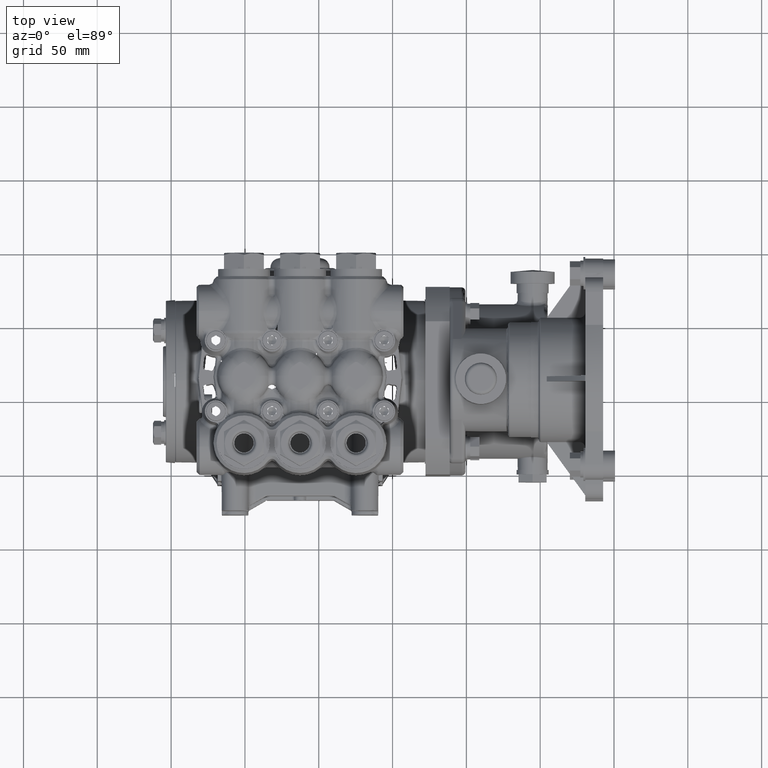
[diagram: clean part render]
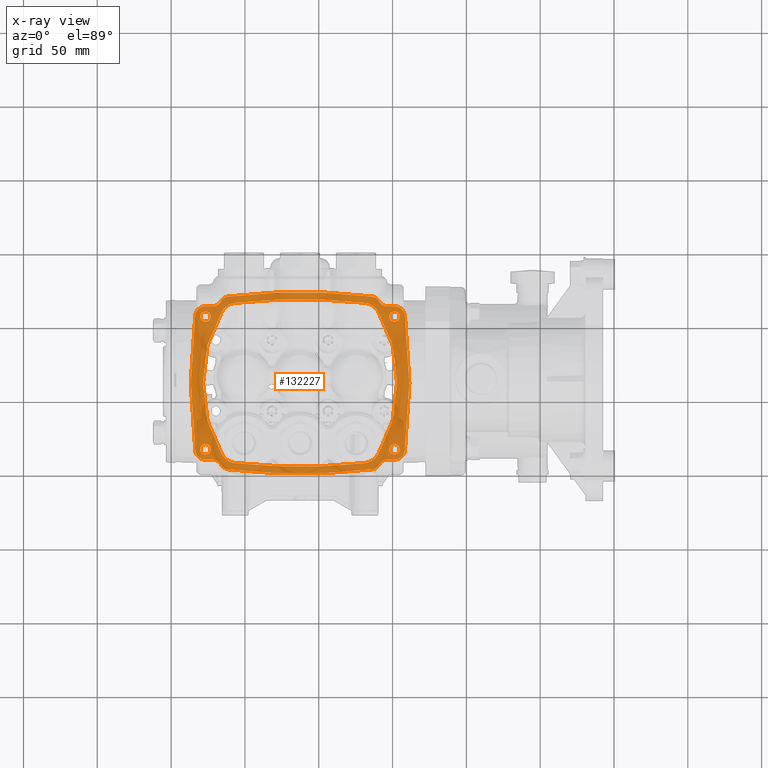
[diagram: x-ray — body ghosted, one internal face saturated and labeled with its STEP entity id]
A machine part, top view, then the same camera in x-ray: the body is ghosted and one INTERNAL B-rep face — a face not visible from any outside direction — is saturated and labeled: STEP entity #132227.
In plain terms, the highlighted planar face has unit normal (0, 0, 1).
Its self-contained STEP definition (entity closure, byte-faithful):
#609 = DIRECTION ( 'NONE',  ( 1.000000000000000000, 0.000000000000000000, 0.000000000000000000 ) ) ;
#864 = CARTESIAN_POINT ( 'NONE',  ( 3.413867403216003016, -1.797611715120703169, -5.317289967586638966 ) ) ;
#1188 = ORIENTED_EDGE ( 'NONE', *, *, #77171, .T. ) ;
#2255 = CARTESIAN_POINT ( 'NONE',  ( 3.320735979854865683, -1.727830149302324703, -5.317289967586638966 ) ) ;
#2276 = CARTESIAN_POINT ( 'NONE',  ( 2.611671022762315442, 2.277757794488521892, -5.317289967586638966 ) ) ;
#2617 = CARTESIAN_POINT ( 'NONE',  ( 3.303574192817006594, 2.679664629551545385, -5.317289967586638966 ) ) ;
#2644 = CARTESIAN_POINT ( 'NONE',  ( 3.024452681768649676, -1.283787736034321503, -5.317289967586638966 ) ) ;
#2761 = EDGE_CURVE ( 'NONE', #20113, #86697, #138893, .T. ) ;
#2903 = EDGE_CURVE ( 'NONE', #82372, #104227, #89151, .T. ) ;
#3239 = CARTESIAN_POINT ( 'NONE',  ( 2.886657406178098295, 2.259519350579851427, -5.317289967586638966 ) ) ;
#3556 = DIRECTION ( 'NONE',  ( 0.000000000000000000, 0.000000000000000000, 1.000000000000000000 ) ) ;
#3898 = CARTESIAN_POINT ( 'NONE',  ( 7.880154257161686715, -0.4895993976771134126, -5.317289967586638966 ) ) ;
#4287 = CARTESIAN_POINT ( 'NONE',  ( 7.432543783667222570, -1.780926782060455738, -5.317289967586638966 ) ) ;
#4313 = EDGE_LOOP ( 'NONE', ( #125128, #1188 ) ) ;
#4745 = CARTESIAN_POINT ( 'NONE',  ( 3.298571622389044666, 2.671321343309664087, -5.317289967586638078 ) ) ;
#4897 = DIRECTION ( 'NONE',  ( 0.000000000000000000, 0.000000000000000000, 1.000000000000000000 ) ) ;
#4924 = AXIS2_PLACEMENT_3D ( 'NONE', #92010, #60071, #6209 ) ;
#5015 = DIRECTION ( 'NONE',  ( 0.000000000000000000, 0.000000000000000000, 1.000000000000000000 ) ) ;
#5058 = CARTESIAN_POINT ( 'NONE',  ( 7.518590057979952945, 2.662679475742813384, -5.317289967586638966 ) ) ;
#5204 = EDGE_CURVE ( 'NONE', #130265, #27602, #35133, .T. ) ;
#5214 = ORIENTED_EDGE ( 'NONE', *, *, #16786, .T. ) ;
#5229 = VERTEX_POINT ( 'NONE', #21593 ) ;
#5709 = VERTEX_POINT ( 'NONE', #83568 ) ;
#5761 = CARTESIAN_POINT ( 'NONE',  ( 7.511800168877019068, 2.675787843240239994, -5.317289967586638966 ) ) ;
#6209 = DIRECTION ( 'NONE',  ( 1.000000000000000000, 0.000000000000000000, 0.000000000000000000 ) ) ;
#6291 = ORIENTED_EDGE ( 'NONE', *, *, #25752, .F. ) ;
#6449 = ORIENTED_EDGE ( 'NONE', *, *, #98946, .F. ) ;
#6495 = EDGE_CURVE ( 'NONE', #65963, #5709, #64394, .T. ) ;
#6527 = EDGE_CURVE ( 'NONE', #106988, #134877, #88781, .T. ) ;
#7456 = ORIENTED_EDGE ( 'NONE', *, *, #67281, .T. ) ;
#7612 = VERTEX_POINT ( 'NONE', #131126 ) ;
#7795 = ORIENTED_EDGE ( 'NONE', *, *, #2903, .T. ) ;
#7869 = EDGE_CURVE ( 'NONE', #70954, #56093, #54397, .T. ) ;
#7923 = DIRECTION ( 'NONE',  ( 0.000000000000000000, 0.000000000000000000, 1.000000000000000000 ) ) ;
#8208 = ORIENTED_EDGE ( 'NONE', *, *, #20213, .T. ) ;
#8405 = CIRCLE ( 'NONE', #112600, 0.2362204724409451007 ) ;
#8470 = DIRECTION ( 'NONE',  ( 0.3947480969913202409, -0.9187893882287339054, -0.000000000000000000 ) ) ;
#8599 = EDGE_CURVE ( 'NONE', #26677, #55913, #33553, .T. ) ;
#8764 = CARTESIAN_POINT ( 'NONE',  ( 8.319728272319830253, 0.4878658072727648509, -5.317289967586638966 ) ) ;
#8810 = ORIENTED_EDGE ( 'NONE', *, *, #125415, .F. ) ;
#8829 = AXIS2_PLACEMENT_3D ( 'NONE', #72306, #136787, #105590 ) ;
#8857 = AXIS2_PLACEMENT_3D ( 'NONE', #129109, #43352, #75287 ) ;
#8888 = CIRCLE ( 'NONE', #47432, 0.1377952755905512972 ) ;
#8974 = VECTOR ( 'NONE', #105272, 39.37007874015748854 ) ;
#9060 = EDGE_CURVE ( 'NONE', #105910, #67926, #56403, .T. ) ;
#9602 = ORIENTED_EDGE ( 'NONE', *, *, #10433, .F. ) ;
#10209 = VERTEX_POINT ( 'NONE', #84553 ) ;
#10397 = ORIENTED_EDGE ( 'NONE', *, *, #14063, .T. ) ;
#10433 = EDGE_CURVE ( 'NONE', #10209, #93838, #67634, .T. ) ;
#10568 = DIRECTION ( 'NONE',  ( 1.000000000000000000, 0.000000000000000000, 0.000000000000000000 ) ) ;
#10599 = DIRECTION ( 'NONE',  ( -1.000000000000000000, 0.000000000000000000, 0.000000000000000000 ) ) ;
#10650 = CARTESIAN_POINT ( 'NONE',  ( 7.926027484918256150, -1.559378287215424264, -5.317289967586638966 ) ) ;
#10690 = AXIS2_PLACEMENT_3D ( 'NONE', #77175, #54488, #140241 ) ;
#10780 = AXIS2_PLACEMENT_3D ( 'NONE', #64938, #35069, #32322 ) ;
#11029 = EDGE_CURVE ( 'NONE', #88131, #62793, #97109, .T. ) ;
#11075 = AXIS2_PLACEMENT_3D ( 'NONE', #60013, #91260, #91954 ) ;
#11125 = CARTESIAN_POINT ( 'NONE',  ( 5.406342445548184550, -12.84874836595558101, -5.317289967586638966 ) ) ;
#12009 = CARTESIAN_POINT ( 'NONE',  ( 8.122445382067809305, 0.4878658072727648509, -5.317289967586638966 ) ) ;
#12043 = AXIS2_PLACEMENT_3D ( 'NONE', #11125, #64310, #108220 ) ;
#12689 = CARTESIAN_POINT ( 'NONE',  ( 3.084344387589747161, 2.771330374201901314, -5.317289967586638966 ) ) ;
#12705 = DIRECTION ( 'NONE',  ( 0.000000000000000000, 0.000000000000000000, 1.000000000000000000 ) ) ;
#13027 = VERTEX_POINT ( 'NONE', #138282 ) ;
#13245 = CARTESIAN_POINT ( 'NONE',  ( 3.479894905609290046, 2.790850897737196412, -5.317289967586638966 ) ) ;
#13249 = AXIS2_PLACEMENT_3D ( 'NONE', #97131, #85827, #10599 ) ;
#13276 = VECTOR ( 'NONE', #120032, 39.37007874015748854 ) ;
#13361 = CIRCLE ( 'NONE', #17979, 0.1377952755905512972 ) ;
#13589 = CARTESIAN_POINT ( 'NONE',  ( 3.460334305591270976, -1.812706597195267610, -5.317289967586638966 ) ) ;
#14063 = EDGE_CURVE ( 'NONE', #90517, #67926, #103508, .T. ) ;
#14292 = EDGE_CURVE ( 'NONE', #5229, #98233, #8405, .T. ) ;
#14650 = CARTESIAN_POINT ( 'NONE',  ( 3.340588699600012923, 2.725087387763449609, -5.317289967586638078 ) ) ;
#14793 = CARTESIAN_POINT ( 'NONE',  ( 3.128037939532309686, -0.4666435496617349910, -5.317289967586638966 ) ) ;
#15228 = ORIENTED_EDGE ( 'NONE', *, *, #17170, .T. ) ;
#15229 = CARTESIAN_POINT ( 'NONE',  ( 8.201013868334039003, 2.277757794488521892, -5.317289967586638966 ) ) ;
#15258 = CIRCLE ( 'NONE', #24375, 0.1377952755905512972 ) ;
#15496 = VERTEX_POINT ( 'NONE', #55489 ) ;
#15681 = VERTEX_POINT ( 'NONE', #16948 ) ;
#15772 = ORIENTED_EDGE ( 'NONE', *, *, #98253, .F. ) ;
#16224 = ORIENTED_EDGE ( 'NONE', *, *, #114630, .F. ) ;
#16612 = CIRCLE ( 'NONE', #100392, 0.2362204724409461831 ) ;
#16786 = EDGE_CURVE ( 'NONE', #125820, #73538, #117130, .T. ) ;
#16948 = CARTESIAN_POINT ( 'NONE',  ( 8.201013868334040779, -1.302026179942992412, -5.317289967586638966 ) ) ;
#17019 = DIRECTION ( 'NONE',  ( 1.000000000000000000, 0.000000000000000000, 0.000000000000000000 ) ) ;
#17170 = EDGE_CURVE ( 'NONE', #30438, #65963, #65148, .T. ) ;
#17802 = CARTESIAN_POINT ( 'NONE',  ( 7.440968046772995059, 2.750358123708577018, -5.317289967586638966 ) ) ;
#17901 = ORIENTED_EDGE ( 'NONE', *, *, #120611, .T. ) ;
#17979 = AXIS2_PLACEMENT_3D ( 'NONE', #22236, #46265, #78234 ) ;
#18443 = CARTESIAN_POINT ( 'NONE',  ( 7.788232209327704325, -1.283787736034321503, -5.317289967586638966 ) ) ;
#18624 = VERTEX_POINT ( 'NONE', #138701 ) ;
#19608 = VERTEX_POINT ( 'NONE', #71321 ) ;
#20065 = CIRCLE ( 'NONE', #11075, 0.1968503937007875793 ) ;
#20113 = VERTEX_POINT ( 'NONE', #100600 ) ;
#20213 = EDGE_CURVE ( 'NONE', #48112, #35187, #8888, .T. ) ;
#20762 = AXIS2_PLACEMENT_3D ( 'NONE', #24382, #46334, #68356 ) ;
#21234 = FACE_BOUND ( 'NONE', #33761, .T. ) ;
#21561 = ORIENTED_EDGE ( 'NONE', *, *, #9060, .F. ) ;
#21593 = CARTESIAN_POINT ( 'NONE',  ( 7.728340437024717069, -1.559378287215424264, -5.317289967586638966 ) ) ;
#21795 = VECTOR ( 'NONE', #36975, 39.37007874015748854 ) ;
#21987 = LINE ( 'NONE', #10650, #126529 ) ;
#22197 = CIRCLE ( 'NONE', #94593, 0.1968503937007875793 ) ;
#22236 = CARTESIAN_POINT ( 'NONE',  ( 2.886657406178098295, -1.283787736034321503, -5.317289967586638966 ) ) ;
#22598 = CARTESIAN_POINT ( 'NONE',  ( 7.926027484918256150, 2.535109901760953743, -5.317289967586638966 ) ) ;
#22787 = CARTESIAN_POINT ( 'NONE',  ( 7.488202924591164766, -1.732362880993868259, -5.317289967586638966 ) ) ;
#22859 = CARTESIAN_POINT ( 'NONE',  ( 3.404850880243078581, -1.793573122920251617, -5.317289967586638078 ) ) ;
#22938 = CARTESIAN_POINT ( 'NONE',  ( 8.201013868334039003, 2.277757794488521892, -5.317289967586638966 ) ) ;
#22970 = VERTEX_POINT ( 'NONE', #52911 ) ;
#23536 = CARTESIAN_POINT ( 'NONE',  ( 3.441382354990695447, -1.808028119427974145, -5.317289967586638078 ) ) ;
#23941 = ORIENTED_EDGE ( 'NONE', *, *, #126894, .T. ) ;
#24149 = EDGE_CURVE ( 'NONE', #5709, #13027, #127144, .T. ) ;
#24336 = AXIS2_PLACEMENT_3D ( 'NONE', #38424, #7923, #73139 ) ;
#24375 = AXIS2_PLACEMENT_3D ( 'NONE', #33918, #120376, #609 ) ;
#24382 = CARTESIAN_POINT ( 'NONE',  ( 3.734967970170996132, -1.181150655628262935, -5.317289967586638966 ) ) ;
#25552 = CARTESIAN_POINT ( 'NONE',  ( 7.384365518556138319, -1.803251160357355332, -5.317289967586638966 ) ) ;
#25709 = VERTEX_POINT ( 'NONE', #45196 ) ;
#25752 = EDGE_CURVE ( 'NONE', #56093, #123393, #78339, .T. ) ;
#26324 = CARTESIAN_POINT ( 'NONE',  ( 7.992229719815443723, 0.4649099592573843753, -5.317289967586638966 ) ) ;
#26677 = VERTEX_POINT ( 'NONE', #15229 ) ;
#27042 = CARTESIAN_POINT ( 'NONE',  ( 7.457851312834733903, 2.737734370948620377, -5.317289967586638966 ) ) ;
#27602 = VERTEX_POINT ( 'NONE', #28023 ) ;
#28023 = CARTESIAN_POINT ( 'NONE',  ( 2.748862130587546915, -1.283787736034321503, -5.317289967586638966 ) ) ;
#28213 = ORIENTED_EDGE ( 'NONE', *, *, #69366, .T. ) ;
#28498 = VECTOR ( 'NONE', #67920, 39.37007874015748143 ) ;
#28573 = EDGE_CURVE ( 'NONE', #48949, #122759, #69655, .T. ) ;
#29412 = CIRCLE ( 'NONE', #104111, 0.1377952755905512972 ) ;
#29750 = EDGE_CURVE ( 'NONE', #129349, #70954, #119638, .T. ) ;
#30125 = EDGE_CURVE ( 'NONE', #15496, #96666, #20065, .T. ) ;
#30155 = CARTESIAN_POINT ( 'NONE',  ( 2.493820663731554976, 0.4748383473380001218, -5.317289967586638966 ) ) ;
#30438 = VERTEX_POINT ( 'NONE', #130752 ) ;
#30677 = CARTESIAN_POINT ( 'NONE',  ( 3.294093668923157026, -1.686944775002687358, -5.317289967586638966 ) ) ;
#31073 = VERTEX_POINT ( 'NONE', #63177 ) ;
#31104 = DIRECTION ( 'NONE',  ( -1.000000000000000000, 0.000000000000000000, 0.000000000000000000 ) ) ;
#31166 = DIRECTION ( 'NONE',  ( 0.000000000000000000, 0.000000000000000000, 1.000000000000000000 ) ) ;
#31467 = CARTESIAN_POINT ( 'NONE',  ( 2.611671022762313665, -1.302026179942992412, -5.317289967586638966 ) ) ;
#31743 = DIRECTION ( 'NONE',  ( -1.000000000000000000, 0.000000000000000000, 0.000000000000000000 ) ) ;
#31851 = ORIENTED_EDGE ( 'NONE', *, *, #43431, .F. ) ;
#32161 = ORIENTED_EDGE ( 'NONE', *, *, #6495, .T. ) ;
#32322 = DIRECTION ( 'NONE',  ( 1.000000000000000000, 0.000000000000000000, 0.000000000000000000 ) ) ;
#33471 = CARTESIAN_POINT ( 'NONE',  ( 3.355243169957465188, -1.762299798471638201, -5.317289967586638078 ) ) ;
#33520 = VECTOR ( 'NONE', #45797, 39.37007874015748143 ) ;
#33553 = LINE ( 'NONE', #22938, #13276 ) ;
#33761 = EDGE_LOOP ( 'NONE', ( #7456, #8208 ) ) ;
#33918 = CARTESIAN_POINT ( 'NONE',  ( 2.886657406178098295, 2.259519350579851427, -5.317289967586638966 ) ) ;
#34445 = LINE ( 'NONE', #45766, #87156 ) ;
#35069 = DIRECTION ( 'NONE',  ( -0.000000000000000000, -0.000000000000000000, -1.000000000000000000 ) ) ;
#35133 = CIRCLE ( 'NONE', #136775, 0.1377952755905512972 ) ;
#35187 = VERTEX_POINT ( 'NONE', #112984 ) ;
#35241 = DIRECTION ( 'NONE',  ( 1.000000000000000000, 0.000000000000000000, 0.000000000000000000 ) ) ;
#35462 = CARTESIAN_POINT ( 'NONE',  ( 7.465871803454825262, -1.755149933841411158, -5.317289967586638966 ) ) ;
#35805 = VECTOR ( 'NONE', #8470, 39.37007874015748143 ) ;
#36128 = AXIS2_PLACEMENT_3D ( 'NONE', #3239, #37955, #101069 ) ;
#36975 = DIRECTION ( 'NONE',  ( 0.06617949646860503410, -0.9978077341087118191, 0.000000000000000000 ) ) ;
#37204 = VECTOR ( 'NONE', #109311, 39.37007874015747433 ) ;
#37805 = EDGE_CURVE ( 'NONE', #19608, #71099, #43611, .T. ) ;
#37955 = DIRECTION ( 'NONE',  ( 0.000000000000000000, 0.000000000000000000, 1.000000000000000000 ) ) ;
#38424 = CARTESIAN_POINT ( 'NONE',  ( 2.690239509028545140, 0.4878658072727648509, -5.317289967586638966 ) ) ;
#38597 = B_SPLINE_CURVE_WITH_KNOTS ( 'NONE', 3,
 ( #13245, #79223, #90558, #122391, #78500, #101151, #68562, #111772, #99759, #14650, #123096, #133723, #101879, #2617, #4745, #113202 ),
 .UNSPECIFIED., .F., .F.,
 ( 4, 2, 2, 2, 2, 2, 2, 4 ),
 ( 0.000000000000000000, 0.2310239325060011450, 0.3465358987590028139, 0.4620478650120045661, 0.5775598312650063182, 0.6930717975180078483, 0.8085837637710096004, 0.9240957300240113526 ),
 .UNSPECIFIED. ) ;
#38824 = EDGE_CURVE ( 'NONE', #134877, #105910, #50227, .T. ) ;
#39671 = ORIENTED_EDGE ( 'NONE', *, *, #138355, .T. ) ;
#39709 = DIRECTION ( 'NONE',  ( 1.000000000000000000, 0.000000000000000000, 0.000000000000000000 ) ) ;
#39893 = ORIENTED_EDGE ( 'NONE', *, *, #54465, .T. ) ;
#40147 = EDGE_LOOP ( 'NONE', ( #47445, #15772 ) ) ;
#40179 = DIRECTION ( 'NONE',  ( -0.000000000000000000, 0.000000000000000000, 1.000000000000000000 ) ) ;
#41032 = ORIENTED_EDGE ( 'NONE', *, *, #28573, .T. ) ;
#41572 = AXIS2_PLACEMENT_3D ( 'NONE', #58014, #101267, #47387 ) ;
#42109 = CIRCLE ( 'NONE', #60240, 0.4724409448818902013 ) ;
#42126 = CARTESIAN_POINT ( 'NONE',  ( 2.947173886731377479, -0.5443498679671133766, -5.317289967586638966 ) ) ;
#42529 = VECTOR ( 'NONE', #134741, 39.37007874015748854 ) ;
#42939 = CIRCLE ( 'NONE', #36128, 0.2755905511811004294 ) ;
#43093 = CARTESIAN_POINT ( 'NONE',  ( 3.479894905609290046, 2.790850897737196412, -5.317289967586638966 ) ) ;
#43160 = CARTESIAN_POINT ( 'NONE',  ( 7.926027484918256150, 2.259519350579851427, -5.317289967586638966 ) ) ;
#43207 = CARTESIAN_POINT ( 'NONE',  ( 7.926027484918256150, -1.283787736034321503, -5.317289967586638966 ) ) ;
#43221 = DIRECTION ( 'NONE',  ( 1.000000000000000000, 0.000000000000000000, -0.000000000000000000 ) ) ;
#43241 = DIRECTION ( 'NONE',  ( -0.000000000000000000, -0.000000000000000000, -1.000000000000000000 ) ) ;
#43352 = DIRECTION ( 'NONE',  ( 0.000000000000000000, 0.000000000000000000, 1.000000000000000000 ) ) ;
#43394 = DIRECTION ( 'NONE',  ( -1.000000000000000000, 0.000000000000000000, 0.000000000000000000 ) ) ;
#43431 = EDGE_CURVE ( 'NONE', #52410, #20113, #84531, .T. ) ;
#43611 = B_SPLINE_CURVE_WITH_KNOTS ( 'NONE', 3,
 ( #60321, #59633, #92266, #114879, #136171, #113507, #17802, #27042, #126227, #103572, #61046, #58947, #5761, #5058 ),
 .UNSPECIFIED., .F., .F.,
 ( 4, 2, 2, 2, 2, 2, 4 ),
 ( 0.000000000000000000, 0.2499999999999943101, 0.3749999999999914513, 0.4999999999999886202, 0.6249999999999856781, 0.7499999999999829026, 0.9245799895658276535 ),
 .UNSPECIFIED. ) ;
#43893 = DIRECTION ( 'NONE',  ( -0.000000000000000000, -0.000000000000000000, -1.000000000000000000 ) ) ;
#43907 = FACE_BOUND ( 'NONE', #40147, .T. ) ;
#43976 = AXIS2_PLACEMENT_3D ( 'NONE', #53017, #66444, #31743 ) ;
#44711 = CARTESIAN_POINT ( 'NONE',  ( 7.457857942326485023, -1.761997106776481470, -5.317289967586638966 ) ) ;
#44790 = CARTESIAN_POINT ( 'NONE',  ( 3.379169296105529519, -1.779482673536470605, -5.317289967586638078 ) ) ;
#44909 = ORIENTED_EDGE ( 'NONE', *, *, #30125, .T. ) ;
#45004 = EDGE_CURVE ( 'NONE', #18624, #15681, #86752, .T. ) ;
#45196 = CARTESIAN_POINT ( 'NONE',  ( 7.728340503506607284, 2.535109901760954632, -5.317289967586638966 ) ) ;
#45444 = DIRECTION ( 'NONE',  ( 0.000000000000000000, 0.000000000000000000, 1.000000000000000000 ) ) ;
#45490 = CARTESIAN_POINT ( 'NONE',  ( 3.303583005842269049, -1.703944459029928415, -5.317289967586638966 ) ) ;
#45766 = CARTESIAN_POINT ( 'NONE',  ( 2.886657406178098295, 2.535109901760953743, -5.317289967586638966 ) ) ;
#45797 = DIRECTION ( 'NONE',  ( -0.1166157079181237149, -0.9931771124360221359, -0.000000000000000000 ) ) ;
#45994 = DIRECTION ( 'NONE',  ( -0.000000000000000000, -0.000000000000000000, -1.000000000000000000 ) ) ;
#46265 = DIRECTION ( 'NONE',  ( 0.000000000000000000, 0.000000000000000000, 1.000000000000000000 ) ) ;
#46334 = DIRECTION ( 'NONE',  ( 0.000000000000000000, 0.000000000000000000, 1.000000000000000000 ) ) ;
#46848 = DIRECTION ( 'NONE',  ( -0.000000000000000000, 0.000000000000000000, 1.000000000000000000 ) ) ;
#47259 = EDGE_CURVE ( 'NONE', #7612, #22970, #34445, .T. ) ;
#47387 = DIRECTION ( 'NONE',  ( 1.000000000000000000, 0.000000000000000000, 0.000000000000000000 ) ) ;
#47432 = AXIS2_PLACEMENT_3D ( 'NONE', #133164, #45994, #47435 ) ;
#47435 = DIRECTION ( 'NONE',  ( -1.000000000000000000, 0.000000000000000000, 0.000000000000000000 ) ) ;
#47445 = ORIENTED_EDGE ( 'NONE', *, *, #5204, .F. ) ;
#47538 = CARTESIAN_POINT ( 'NONE',  ( 7.332789985487073281, -1.815119283191671373, -5.317289967586638966 ) ) ;
#47573 = DIRECTION ( 'NONE',  ( 1.000000000000000000, 0.000000000000000000, 0.000000000000000000 ) ) ;
#47713 = EDGE_CURVE ( 'NONE', #137677, #62745, #92064, .T. ) ;
#48112 = VERTEX_POINT ( 'NONE', #96255 ) ;
#48297 = LINE ( 'NONE', #91570, #42529 ) ;
#48316 = ORIENTED_EDGE ( 'NONE', *, *, #54937, .T. ) ;
#48594 = CARTESIAN_POINT ( 'NONE',  ( 2.932530633934667730, -0.4895993976771134126, -5.317289967586638966 ) ) ;
#48649 = CARTESIAN_POINT ( 'NONE',  ( 7.992229719815443723, 0.5108216552881414962, -5.317289967586638966 ) ) ;
#48938 = ORIENTED_EDGE ( 'NONE', *, *, #14292, .F. ) ;
#48949 = VERTEX_POINT ( 'NONE', #31467 ) ;
#49040 = ORIENTED_EDGE ( 'NONE', *, *, #11029, .T. ) ;
#49204 = CARTESIAN_POINT ( 'NONE',  ( 3.300894243448763365, 2.343377434106709511, -5.317289967586638966 ) ) ;
#49344 = EDGE_CURVE ( 'NONE', #19608, #120899, #120322, .T. ) ;
#49380 = CARTESIAN_POINT ( 'NONE',  ( 7.511790647647591079, 2.343377434106709511, -5.317289967586638966 ) ) ;
#50227 = CIRCLE ( 'NONE', #20762, 0.4724409448818902013 ) ;
#50757 = CARTESIAN_POINT ( 'NONE',  ( 2.932530633934668174, 1.465331012222643725, -5.317289967586638966 ) ) ;
#51560 = ORIENTED_EDGE ( 'NONE', *, *, #104179, .F. ) ;
#52410 = VERTEX_POINT ( 'NONE', #129774 ) ;
#52911 = CARTESIAN_POINT ( 'NONE',  ( 2.886657406178098295, 2.535109901760951967, -5.317289967586638966 ) ) ;
#53017 = CARTESIAN_POINT ( 'NONE',  ( 7.926027484918256150, -1.283787736034321503, -5.317289967586638966 ) ) ;
#53563 = ORIENTED_EDGE ( 'NONE', *, *, #47259, .T. ) ;
#54397 = LINE ( 'NONE', #98998, #33520 ) ;
#54465 = EDGE_CURVE ( 'NONE', #120899, #105722, #38597, .T. ) ;
#54488 = DIRECTION ( 'NONE',  ( -0.000000000000000000, -0.000000000000000000, -1.000000000000000000 ) ) ;
#54543 = CARTESIAN_POINT ( 'NONE',  ( 2.886657406178098295, -1.559378287215424264, -5.317289967586638966 ) ) ;
#54563 = FACE_BOUND ( 'NONE', #4313, .T. ) ;
#54657 = B_SPLINE_CURVE_WITH_KNOTS ( 'NONE', 3,
 ( #100700, #130495, #56755, #22787, #76700, #35462, #44711, #4287, #79465, #25552, #121228, #58154, #119871, #47538 ),
 .UNSPECIFIED., .F., .F.,
 ( 4, 2, 2, 2, 2, 2, 4 ),
 ( 0.07546029968613815475, 0.2500000000000090483, 0.3750000000000077716, 0.5000000000000066613, 0.7500000000000042188, 0.8750000000000019984, 1.000000000000000000 ),
 .UNSPECIFIED. ) ;
#54776 = CARTESIAN_POINT ( 'NONE',  ( 3.479894905609280720, -1.815119283191671373, -5.317289967586638966 ) ) ;
#54937 = EDGE_CURVE ( 'NONE', #62793, #15496, #79889, .T. ) ;
#55131 = CARTESIAN_POINT ( 'NONE',  ( 7.518590057979952945, 2.662679475742813384, -5.317289967586638966 ) ) ;
#55489 = CARTESIAN_POINT ( 'NONE',  ( 7.992229719815443723, 0.5108216552881416073, -5.317289967586638966 ) ) ;
#55899 = VERTEX_POINT ( 'NONE', #49380 ) ;
#55913 = VERTEX_POINT ( 'NONE', #115967 ) ;
#56093 = VERTEX_POINT ( 'NONE', #75003 ) ;
#56344 = ORIENTED_EDGE ( 'NONE', *, *, #108413, .F. ) ;
#56403 = CIRCLE ( 'NONE', #8857, 15.57086614173228156 ) ;
#56755 = CARTESIAN_POINT ( 'NONE',  ( 7.503835977104873045, -1.712406181328635313, -5.317289967586638966 ) ) ;
#57000 = LINE ( 'NONE', #108787, #57904 ) ;
#57904 = VECTOR ( 'NONE', #76941, 39.37007874015748143 ) ;
#58014 = CARTESIAN_POINT ( 'NONE',  ( 3.734967970170999685, 2.156882270173801519, -5.317289967586638966 ) ) ;
#58154 = CARTESIAN_POINT ( 'NONE',  ( 7.353890537358118706, -1.811813072354132581, -5.317289967586638966 ) ) ;
#58167 = CARTESIAN_POINT ( 'NONE',  ( 2.886657406178098295, 2.259519350579851427, -5.317289967586638966 ) ) ;
#58947 = CARTESIAN_POINT ( 'NONE',  ( 7.503842289308088276, 2.688123624891000318, -5.317289967586638966 ) ) ;
#59613 = DIRECTION ( 'NONE',  ( -1.000000000000000000, 0.000000000000000000, 0.000000000000000000 ) ) ;
#59633 = CARTESIAN_POINT ( 'NONE',  ( 7.354015171132379791, 2.788234784937690502, -5.317289967586638966 ) ) ;
#59760 = EDGE_LOOP ( 'NONE', ( #9602, #77913 ) ) ;
#59928 = CARTESIAN_POINT ( 'NONE',  ( 7.077716920925354316, 2.156882270173801519, -5.317289967586638966 ) ) ;
#60013 = CARTESIAN_POINT ( 'NONE',  ( 7.796722414217802211, 0.4878658072727630746, -5.317289967586638966 ) ) ;
#60071 = DIRECTION ( 'NONE',  ( 0.000000000000000000, 0.000000000000000000, 1.000000000000000000 ) ) ;
#60240 = AXIS2_PLACEMENT_3D ( 'NONE', #59928, #89915, #93277 ) ;
#60321 = CARTESIAN_POINT ( 'NONE',  ( 7.332789985487065287, 2.790850897737196412, -5.317289967586638966 ) ) ;
#60525 = ORIENTED_EDGE ( 'NONE', *, *, #24149, .T. ) ;
#60810 = CARTESIAN_POINT ( 'NONE',  ( 3.294093668923157026, -1.686944775002687358, -5.317289967586638966 ) ) ;
#61046 = CARTESIAN_POINT ( 'NONE',  ( 7.488264395418887887, 2.708020378946751627, -5.317289967586638966 ) ) ;
#61262 = EDGE_CURVE ( 'NONE', #25709, #31073, #121730, .T. ) ;
#62011 = LINE ( 'NONE', #48594, #8974 ) ;
#62039 = VERTEX_POINT ( 'NONE', #76104 ) ;
#62745 = VERTEX_POINT ( 'NONE', #135898 ) ;
#62793 = VERTEX_POINT ( 'NONE', #125943 ) ;
#63177 = CARTESIAN_POINT ( 'NONE',  ( 7.926027484918256150, 2.535109901760951967, -5.317289967586638966 ) ) ;
#63302 = EDGE_CURVE ( 'NONE', #122759, #30438, #99138, .T. ) ;
#64310 = DIRECTION ( 'NONE',  ( 0.000000000000000000, 0.000000000000000000, 1.000000000000000000 ) ) ;
#64394 = B_SPLINE_CURVE_WITH_KNOTS ( 'NONE', 3,
 ( #30677, #73952, #45490, #76072, #2255, #129880, #67480, #33471, #119950, #44790, #120620, #22859, #864, #23536, #13589, #54776 ),
 .UNSPECIFIED., .F., .F.,
 ( 4, 2, 2, 2, 2, 2, 2, 4 ),
 ( 0.07585387448540915900, 0.1913721401747324191, 0.3068904058640556376, 0.4224086715533788561, 0.5379269372427021301, 0.6534452029320253486, 0.7689634686213485670, 1.000000000000000000 ),
 .UNSPECIFIED. ) ;
#64579 = EDGE_CURVE ( 'NONE', #55913, #18624, #22197, .T. ) ;
#64938 = CARTESIAN_POINT ( 'NONE',  ( 3.084344454071636932, -1.795598759656369392, -5.317289967586638966 ) ) ;
#65148 = CIRCLE ( 'NONE', #10780, 0.2362204724409445455 ) ;
#65863 = LINE ( 'NONE', #73703, #35805 ) ;
#65963 = VERTEX_POINT ( 'NONE', #60810 ) ;
#66444 = DIRECTION ( 'NONE',  ( -0.000000000000000000, -0.000000000000000000, -1.000000000000000000 ) ) ;
#66680 = CARTESIAN_POINT ( 'NONE',  ( 3.300894243448758925, -1.367645819561170040, -5.317289967586638966 ) ) ;
#67281 = EDGE_CURVE ( 'NONE', #35187, #48112, #29412, .T. ) ;
#67426 = VERTEX_POINT ( 'NONE', #77191 ) ;
#67480 = CARTESIAN_POINT ( 'NONE',  ( 3.340581867817319139, -1.749348262756680095, -5.317289967586638966 ) ) ;
#67631 = DIRECTION ( 'NONE',  ( 1.000000000000000000, 0.000000000000000000, 0.000000000000000000 ) ) ;
#67634 = CIRCLE ( 'NONE', #76786, 0.1377952755905512972 ) ;
#67920 = DIRECTION ( 'NONE',  ( 1.000000000000000000, -4.145717599848920794E-15, -0.000000000000000000 ) ) ;
#67926 = VERTEX_POINT ( 'NONE', #102463 ) ;
#68009 = CARTESIAN_POINT ( 'NONE',  ( 3.128037939532309686, 1.442375164207264859, -5.317289967586638966 ) ) ;
#68356 = DIRECTION ( 'NONE',  ( 1.000000000000000000, 0.000000000000000000, 0.000000000000000000 ) ) ;
#68562 = CARTESIAN_POINT ( 'NONE',  ( 3.379214472336078856, 2.755241873486957704, -5.317289967586638966 ) ) ;
#69366 = EDGE_CURVE ( 'NONE', #62039, #125820, #133387, .T. ) ;
#69655 = CIRCLE ( 'NONE', #139851, 0.2755905511811004294 ) ;
#69999 = EDGE_CURVE ( 'NONE', #73538, #48949, #121315, .T. ) ;
#70396 = ORIENTED_EDGE ( 'NONE', *, *, #2761, .F. ) ;
#70954 = VERTEX_POINT ( 'NONE', #50757 ) ;
#70964 = CIRCLE ( 'NONE', #109374, 0.2362204724409456558 ) ;
#71099 = VERTEX_POINT ( 'NONE', #55131 ) ;
#71321 = CARTESIAN_POINT ( 'NONE',  ( 7.332789985487065287, 2.790850897737196412, -5.317289967586638966 ) ) ;
#72306 = CARTESIAN_POINT ( 'NONE',  ( 7.926027484918256150, 2.259519350579851427, -5.317289967586638966 ) ) ;
#72939 = DIRECTION ( 'NONE',  ( 1.000000000000000000, 0.000000000000000000, 0.000000000000000000 ) ) ;
#72960 = CARTESIAN_POINT ( 'NONE',  ( 7.865511004364976522, 1.520081482512642967, -5.317289967586638966 ) ) ;
#73139 = DIRECTION ( 'NONE',  ( 1.000000000000000000, 0.000000000000000000, 0.000000000000000000 ) ) ;
#73357 = AXIS2_PLACEMENT_3D ( 'NONE', #118874, #88419, #119569 ) ;
#73538 = VERTEX_POINT ( 'NONE', #30155 ) ;
#73703 = CARTESIAN_POINT ( 'NONE',  ( 7.865511004364976522, 1.520081482512642967, -5.317289967586638966 ) ) ;
#73952 = CARTESIAN_POINT ( 'NONE',  ( 3.298574482727159474, -1.695592757054418698, -5.317289967586640742 ) ) ;
#75003 = CARTESIAN_POINT ( 'NONE',  ( 2.820455171280910278, 0.5108216552881416073, -5.317289967586638966 ) ) ;
#75287 = DIRECTION ( 'NONE',  ( 1.000000000000000000, 0.000000000000000000, 0.000000000000000000 ) ) ;
#76072 = CARTESIAN_POINT ( 'NONE',  ( 3.314656635606325175, -1.720054699409168997, -5.317289967586640742 ) ) ;
#76104 = CARTESIAN_POINT ( 'NONE',  ( 2.611671022762315442, 2.277757794488521892, -5.317289967586638966 ) ) ;
#76218 = DIRECTION ( 'NONE',  ( 0.000000000000000000, 0.000000000000000000, 1.000000000000000000 ) ) ;
#76700 = CARTESIAN_POINT ( 'NONE',  ( 7.481031542356618047, -1.740356200472989778, -5.317289967586638966 ) ) ;
#76786 = AXIS2_PLACEMENT_3D ( 'NONE', #58167, #5015, #39709 ) ;
#76941 = DIRECTION ( 'NONE',  ( -0.3947480969913202409, -0.9187893882287339054, -0.000000000000000000 ) ) ;
#77130 = ORIENTED_EDGE ( 'NONE', *, *, #64579, .F. ) ;
#77171 = EDGE_CURVE ( 'NONE', #62745, #137677, #135501, .T. ) ;
#77175 = CARTESIAN_POINT ( 'NONE',  ( 7.077716920925358757, -1.181150655628262935, -5.317289967586638966 ) ) ;
#77191 = CARTESIAN_POINT ( 'NONE',  ( 2.932530633934667730, -0.4895993976771134126, -5.317289967586638966 ) ) ;
#77913 = ORIENTED_EDGE ( 'NONE', *, *, #136313, .F. ) ;
#78100 = CARTESIAN_POINT ( 'NONE',  ( 2.886657406178098295, -1.283787736034321503, -5.317289967586638966 ) ) ;
#78170 = DIRECTION ( 'NONE',  ( -0.06617949646860472879, -0.9978077341087118191, 0.000000000000000000 ) ) ;
#78234 = DIRECTION ( 'NONE',  ( 1.000000000000000000, 0.000000000000000000, 0.000000000000000000 ) ) ;
#78339 = CIRCLE ( 'NONE', #109937, 0.1968503937007875793 ) ;
#78500 = CARTESIAN_POINT ( 'NONE',  ( 3.404913062510376953, 2.769335789958366600, -5.317289967586640742 ) ) ;
#79223 = CARTESIAN_POINT ( 'NONE',  ( 3.460367071140640682, 2.788442285580507107, -5.317289967586640742 ) ) ;
#79465 = CARTESIAN_POINT ( 'NONE',  ( 7.413720126254268905, -1.791481976645590279, -5.317289967586638966 ) ) ;
#79840 = ORIENTED_EDGE ( 'NONE', *, *, #133098, .F. ) ;
#79889 = LINE ( 'NONE', #48649, #138834 ) ;
#80324 = EDGE_LOOP ( 'NONE', ( #31851, #113634, #120387, #49040, #48316, #44909, #17901, #7795, #39671, #10397, #21561, #91511, #87950, #124982, #6449, #6291, #100443, #126216, #79840, #70396 ) ) ;
#81442 = ORIENTED_EDGE ( 'NONE', *, *, #69999, .T. ) ;
#82097 = CARTESIAN_POINT ( 'NONE',  ( 7.728340437024717069, -1.795598759656369392, -5.317289967586638966 ) ) ;
#82372 = VERTEX_POINT ( 'NONE', #3898 ) ;
#82544 = CARTESIAN_POINT ( 'NONE',  ( 7.511790647647595520, -1.367645819561170040, -5.317289967586638966 ) ) ;
#82708 = ORIENTED_EDGE ( 'NONE', *, *, #8599, .F. ) ;
#82886 = VERTEX_POINT ( 'NONE', #127015 ) ;
#83061 = AXIS2_PLACEMENT_3D ( 'NONE', #43207, #43893, #87177 ) ;
#83504 = CARTESIAN_POINT ( 'NONE',  ( 2.493820663731554976, 0.5008932672075292469, -5.317289967586638966 ) ) ;
#83568 = CARTESIAN_POINT ( 'NONE',  ( 3.479894905609280720, -1.815119283191671373, -5.317289967586638966 ) ) ;
#83883 = DIRECTION ( 'NONE',  ( -0.3947480969913208515, -0.9187893882287337943, 0.000000000000000000 ) ) ;
#84531 = CIRCLE ( 'NONE', #12043, 15.57086614173229400 ) ;
#84553 = CARTESIAN_POINT ( 'NONE',  ( 3.024452681768649676, 2.259519350579851427, -5.317289967586638966 ) ) ;
#85827 = DIRECTION ( 'NONE',  ( -0.000000000000000000, -0.000000000000000000, -1.000000000000000000 ) ) ;
#86697 = VERTEX_POINT ( 'NONE', #49204 ) ;
#86752 = LINE ( 'NONE', #8764, #129907 ) ;
#87156 = VECTOR ( 'NONE', #118840, 39.37007874015748143 ) ;
#87177 = DIRECTION ( 'NONE',  ( -1.000000000000000000, 0.000000000000000000, 0.000000000000000000 ) ) ;
#87200 = DIRECTION ( 'NONE',  ( -0.000000000000000000, -0.000000000000000000, -1.000000000000000000 ) ) ;
#87406 = VECTOR ( 'NONE', #78170, 39.37007874015748854 ) ;
#87621 = VECTOR ( 'NONE', #10568, 39.37007874015748143 ) ;
#87950 = ORIENTED_EDGE ( 'NONE', *, *, #6527, .F. ) ;
#88094 = CARTESIAN_POINT ( 'NONE',  ( 3.300894243448759369, -1.367645819561170706, -5.317289967586638966 ) ) ;
#88131 = VERTEX_POINT ( 'NONE', #72960 ) ;
#88419 = DIRECTION ( 'NONE',  ( -0.000000000000000000, -0.000000000000000000, -1.000000000000000000 ) ) ;
#88781 = LINE ( 'NONE', #88094, #37204 ) ;
#89118 = ORIENTED_EDGE ( 'NONE', *, *, #108629, .T. ) ;
#89151 = CIRCLE ( 'NONE', #73357, 0.1968503937007875793 ) ;
#89915 = DIRECTION ( 'NONE',  ( -0.000000000000000000, -0.000000000000000000, -1.000000000000000000 ) ) ;
#90517 = VERTEX_POINT ( 'NONE', #82544 ) ;
#90558 = CARTESIAN_POINT ( 'NONE',  ( 3.441434043734382442, 2.783770704746411973, -5.317289967586640742 ) ) ;
#91260 = DIRECTION ( 'NONE',  ( -0.000000000000000000, -0.000000000000000000, -1.000000000000000000 ) ) ;
#91511 = ORIENTED_EDGE ( 'NONE', *, *, #38824, .F. ) ;
#91570 = CARTESIAN_POINT ( 'NONE',  ( 7.880154257161686715, -0.4895993976771134126, -5.317289967586638966 ) ) ;
#91954 = DIRECTION ( 'NONE',  ( -1.000000000000000000, 0.000000000000000000, 0.000000000000000000 ) ) ;
#92010 = CARTESIAN_POINT ( 'NONE',  ( 5.406342445548177444, 13.81463746081607447, -5.317289967586638966 ) ) ;
#92064 = CIRCLE ( 'NONE', #83061, 0.1377952755905512972 ) ;
#92266 = CARTESIAN_POINT ( 'NONE',  ( 7.374443580162032497, 2.782955315848182121, -5.317289967586638966 ) ) ;
#93277 = DIRECTION ( 'NONE',  ( -1.000000000000000000, 0.000000000000000000, 0.000000000000000000 ) ) ;
#93838 = VERTEX_POINT ( 'NONE', #121850 ) ;
#93981 = CARTESIAN_POINT ( 'NONE',  ( 7.684646951564044315, 1.442375164207264859, -5.317289967586638966 ) ) ;
#94589 = EDGE_LOOP ( 'NONE', ( #28213, #5214, #81442, #41032, #131219, #15228, #32161, #60525, #51560, #48938, #121370, #16224, #129134, #77130, #82708, #8810, #102432, #56344, #125611, #111224, #39893, #89118, #53563, #23941 ) ) ;
#94593 = AXIS2_PLACEMENT_3D ( 'NONE', #12009, #87200, #130364 ) ;
#94806 = DIRECTION ( 'NONE',  ( -1.000000000000000000, 0.000000000000000000, 0.000000000000000000 ) ) ;
#95725 = FACE_BOUND ( 'NONE', #59760, .T. ) ;
#96255 = CARTESIAN_POINT ( 'NONE',  ( 8.063822760508807974, 2.259519350579851427, -5.317289967586638966 ) ) ;
#96666 = VERTEX_POINT ( 'NONE', #26324 ) ;
#96770 = CARTESIAN_POINT ( 'NONE',  ( 3.294094833116402388, 2.662679475742813384, -5.317289967586638966 ) ) ;
#97022 = CIRCLE ( 'NONE', #140083, 0.1968503937007870241 ) ;
#97023 = EDGE_CURVE ( 'NONE', #67426, #106988, #97022, .T. ) ;
#97109 = CIRCLE ( 'NONE', #115174, 0.1968503937007875793 ) ;
#97131 = CARTESIAN_POINT ( 'NONE',  ( 7.926027484918256150, -1.283787736034321503, -5.317289967586638966 ) ) ;
#97816 = CARTESIAN_POINT ( 'NONE',  ( 7.650436933737153389, 1.432747697036544254, -5.317289967586638966 ) ) ;
#97970 = EDGE_CURVE ( 'NONE', #82886, #5229, #21987, .T. ) ;
#98233 = VERTEX_POINT ( 'NONE', #100176 ) ;
#98253 = EDGE_CURVE ( 'NONE', #27602, #130265, #13361, .T. ) ;
#98946 = EDGE_CURVE ( 'NONE', #123393, #67426, #62011, .T. ) ;
#98998 = CARTESIAN_POINT ( 'NONE',  ( 2.820455171280910278, 0.5108216552881414962, -5.317289967586638966 ) ) ;
#99138 = LINE ( 'NONE', #54543, #87621 ) ;
#99361 = VECTOR ( 'NONE', #83883, 39.37007874015747433 ) ;
#99759 = CARTESIAN_POINT ( 'NONE',  ( 3.355258964261748300, 2.738046389030071026, -5.317289967586640742 ) ) ;
#99794 = DIRECTION ( 'NONE',  ( 0.000000000000000000, 0.000000000000000000, 1.000000000000000000 ) ) ;
#100176 = CARTESIAN_POINT ( 'NONE',  ( 7.518591222173197863, -1.686944775002687358, -5.317289967586638966 ) ) ;
#100392 = AXIS2_PLACEMENT_3D ( 'NONE', #134726, #46848, #59613 ) ;
#100443 = ORIENTED_EDGE ( 'NONE', *, *, #7869, .F. ) ;
#100600 = CARTESIAN_POINT ( 'NONE',  ( 3.682669420745898314, 2.626419604289975229, -5.317289967586638966 ) ) ;
#100700 = CARTESIAN_POINT ( 'NONE',  ( 7.518591222173197863, -1.686944775002687358, -5.317289967586638966 ) ) ;
#101069 = DIRECTION ( 'NONE',  ( 1.000000000000000000, 0.000000000000000000, 0.000000000000000000 ) ) ;
#101151 = CARTESIAN_POINT ( 'NONE',  ( 3.387584270834697708, 2.760282421007081766, -5.317289967586638078 ) ) ;
#101267 = DIRECTION ( 'NONE',  ( 0.000000000000000000, 0.000000000000000000, 1.000000000000000000 ) ) ;
#101879 = CARTESIAN_POINT ( 'NONE',  ( 3.314631480622898696, 2.695753736536598666, -5.317289967586638966 ) ) ;
#102432 = ORIENTED_EDGE ( 'NONE', *, *, #61262, .F. ) ;
#102463 = CARTESIAN_POINT ( 'NONE',  ( 7.130015470350463680, -1.650687989744433759, -5.317289967586638966 ) ) ;
#103508 = CIRCLE ( 'NONE', #10690, 0.4724409448818902013 ) ;
#103572 = CARTESIAN_POINT ( 'NONE',  ( 7.481129973118156862, 2.715986697427174690, -5.317289967586638966 ) ) ;
#104111 = AXIS2_PLACEMENT_3D ( 'NONE', #43160, #128200, #31104 ) ;
#104179 = EDGE_CURVE ( 'NONE', #98233, #13027, #54657, .T. ) ;
#104227 = VERTEX_POINT ( 'NONE', #131856 ) ;
#105097 = CIRCLE ( 'NONE', #43976, 0.2755905511811004294 ) ;
#105272 = DIRECTION ( 'NONE',  ( 0.1166157079181242145, -0.9931771124360219138, -0.000000000000000000 ) ) ;
#105590 = DIRECTION ( 'NONE',  ( -1.000000000000000000, 0.000000000000000000, 0.000000000000000000 ) ) ;
#105722 = VERTEX_POINT ( 'NONE', #96770 ) ;
#105734 = CARTESIAN_POINT ( 'NONE',  ( 2.886657406178098295, -1.559378287215424264, -5.317289967586638966 ) ) ;
#105910 = VERTEX_POINT ( 'NONE', #130712 ) ;
#106193 = CIRCLE ( 'NONE', #8829, 0.2755905511811004294 ) ;
#106988 = VERTEX_POINT ( 'NONE', #42126 ) ;
#107770 = DIRECTION ( 'NONE',  ( -1.000000000000000000, 0.000000000000000000, 0.000000000000000000 ) ) ;
#108220 = DIRECTION ( 'NONE',  ( 1.000000000000000000, 0.000000000000000000, 0.000000000000000000 ) ) ;
#108413 = EDGE_CURVE ( 'NONE', #71099, #25709, #16612, .T. ) ;
#108416 = FACE_OUTER_BOUND ( 'NONE', #94589, .T. ) ;
#108629 = EDGE_CURVE ( 'NONE', #105722, #7612, #70964, .T. ) ;
#108787 = CARTESIAN_POINT ( 'NONE',  ( 2.947173886731378367, 1.520081482512642967, -5.317289967586638966 ) ) ;
#109311 = DIRECTION ( 'NONE',  ( 0.3947480969913208515, -0.9187893882287337943, -0.000000000000000000 ) ) ;
#109374 = AXIS2_PLACEMENT_3D ( 'NONE', #12689, #43241, #119051 ) ;
#109937 = AXIS2_PLACEMENT_3D ( 'NONE', #131653, #99794, #35241 ) ;
#110946 = CARTESIAN_POINT ( 'NONE',  ( 2.820455171280910278, 0.4649099592573843753, -5.317289967586638966 ) ) ;
#111224 = ORIENTED_EDGE ( 'NONE', *, *, #49344, .T. ) ;
#111772 = CARTESIAN_POINT ( 'NONE',  ( 3.363064070017278251, 2.744133052357745850, -5.317289967586638966 ) ) ;
#112600 = AXIS2_PLACEMENT_3D ( 'NONE', #82097, #40179, #94806 ) ;
#112984 = CARTESIAN_POINT ( 'NONE',  ( 7.788232209327704325, 2.259519350579851427, -5.317289967586638966 ) ) ;
#113202 = CARTESIAN_POINT ( 'NONE',  ( 3.294094833116402388, 2.662679475742813384, -5.317289967586638966 ) ) ;
#113507 = CARTESIAN_POINT ( 'NONE',  ( 7.432123410671638730, 2.756116172981468715, -5.317289967586638966 ) ) ;
#113634 = ORIENTED_EDGE ( 'NONE', *, *, #117636, .T. ) ;
#114630 = EDGE_CURVE ( 'NONE', #15681, #82886, #105097, .T. ) ;
#114879 = CARTESIAN_POINT ( 'NONE',  ( 7.403922024008150693, 2.771144684393599622, -5.317289967586638966 ) ) ;
#115174 = AXIS2_PLACEMENT_3D ( 'NONE', #93981, #137171, #43394 ) ;
#115967 = CARTESIAN_POINT ( 'NONE',  ( 8.318864227364798580, 0.5008932672075292469, -5.317289967586638966 ) ) ;
#116686 = AXIS2_PLACEMENT_3D ( 'NONE', #97816, #31166, #43221 ) ;
#117105 = LINE ( 'NONE', #118506, #99361 ) ;
#117130 = CIRCLE ( 'NONE', #24336, 0.1968503937007875793 ) ;
#117636 = EDGE_CURVE ( 'NONE', #52410, #55899, #42109, .T. ) ;
#118506 = CARTESIAN_POINT ( 'NONE',  ( 7.511790647647595520, -1.367645819561170706, -5.317289967586638966 ) ) ;
#118840 = DIRECTION ( 'NONE',  ( -1.000000000000000000, -4.145717599848920794E-15, -0.000000000000000000 ) ) ;
#118874 = CARTESIAN_POINT ( 'NONE',  ( 7.684646951564044315, -0.4666435496617349910, -5.317289967586638966 ) ) ;
#119051 = DIRECTION ( 'NONE',  ( 1.000000000000000000, 0.000000000000000000, 0.000000000000000000 ) ) ;
#119263 = DIRECTION ( 'NONE',  ( -0.06617949646860503410, -0.9978077341087118191, 0.000000000000000000 ) ) ;
#119569 = DIRECTION ( 'NONE',  ( -1.000000000000000000, 0.000000000000000000, 0.000000000000000000 ) ) ;
#119638 = CIRCLE ( 'NONE', #121817, 0.1968503937007875793 ) ;
#119871 = CARTESIAN_POINT ( 'NONE',  ( 7.343387962885478792, -1.813813028217784007, -5.317289967586638966 ) ) ;
#119950 = CARTESIAN_POINT ( 'NONE',  ( 3.363046874836893352, -1.768388540971147060, -5.317289967586638966 ) ) ;
#120032 = DIRECTION ( 'NONE',  ( 0.06617949646860472879, -0.9978077341087118191, 0.000000000000000000 ) ) ;
#120322 = CIRCLE ( 'NONE', #127104, 15.74803149606299257 ) ;
#120376 = DIRECTION ( 'NONE',  ( 0.000000000000000000, 0.000000000000000000, 1.000000000000000000 ) ) ;
#120387 = ORIENTED_EDGE ( 'NONE', *, *, #123793, .T. ) ;
#120611 = EDGE_CURVE ( 'NONE', #96666, #82372, #48297, .T. ) ;
#120620 = CARTESIAN_POINT ( 'NONE',  ( 3.387530097186765676, -1.784519589926291339, -5.317289967586640742 ) ) ;
#120899 = VERTEX_POINT ( 'NONE', #43093 ) ;
#121228 = CARTESIAN_POINT ( 'NONE',  ( 7.374356972399485954, -1.806533905957436348, -5.317289967586638966 ) ) ;
#121315 = LINE ( 'NONE', #134077, #21795 ) ;
#121370 = ORIENTED_EDGE ( 'NONE', *, *, #97970, .F. ) ;
#121730 = LINE ( 'NONE', #22598, #28498 ) ;
#121817 = AXIS2_PLACEMENT_3D ( 'NONE', #68009, #12705, #133882 ) ;
#121850 = CARTESIAN_POINT ( 'NONE',  ( 2.748862130587546915, 2.259519350579851427, -5.317289967586638966 ) ) ;
#122391 = CARTESIAN_POINT ( 'NONE',  ( 3.413926713218577103, 2.773368880479157639, -5.317289967586640742 ) ) ;
#122759 = VERTEX_POINT ( 'NONE', #105734 ) ;
#123096 = CARTESIAN_POINT ( 'NONE',  ( 3.333679430369867358, 2.718184593921191272, -5.317289967586640742 ) ) ;
#123393 = VERTEX_POINT ( 'NONE', #110946 ) ;
#123770 = DIRECTION ( 'NONE',  ( 0.1166157079181237149, -0.9931771124360221359, -0.000000000000000000 ) ) ;
#123793 = EDGE_CURVE ( 'NONE', #55899, #88131, #65863, .T. ) ;
#124982 = ORIENTED_EDGE ( 'NONE', *, *, #97023, .F. ) ;
#125128 = ORIENTED_EDGE ( 'NONE', *, *, #47713, .T. ) ;
#125415 = EDGE_CURVE ( 'NONE', #31073, #26677, #106193, .T. ) ;
#125611 = ORIENTED_EDGE ( 'NONE', *, *, #37805, .F. ) ;
#125820 = VERTEX_POINT ( 'NONE', #83504 ) ;
#125943 = CARTESIAN_POINT ( 'NONE',  ( 7.880154257161685827, 1.465331012222643725, -5.317289967586638966 ) ) ;
#126216 = ORIENTED_EDGE ( 'NONE', *, *, #29750, .F. ) ;
#126227 = CARTESIAN_POINT ( 'NONE',  ( 7.465890029682138440, 2.730868786866079478, -5.317289967586638966 ) ) ;
#126529 = VECTOR ( 'NONE', #107770, 39.37007874015748143 ) ;
#126894 = EDGE_CURVE ( 'NONE', #22970, #62039, #42939, .T. ) ;
#127015 = CARTESIAN_POINT ( 'NONE',  ( 7.926027484918256150, -1.559378287215424264, -5.317289967586638966 ) ) ;
#127104 = AXIS2_PLACEMENT_3D ( 'NONE', #133980, #3556, #17019 ) ;
#127144 = CIRCLE ( 'NONE', #4924, 15.74803149606299790 ) ;
#128200 = DIRECTION ( 'NONE',  ( -0.000000000000000000, -0.000000000000000000, -1.000000000000000000 ) ) ;
#129109 = CARTESIAN_POINT ( 'NONE',  ( 5.406342445548177444, 13.82447998050111160, -5.317289967586638966 ) ) ;
#129134 = ORIENTED_EDGE ( 'NONE', *, *, #45004, .F. ) ;
#129349 = VERTEX_POINT ( 'NONE', #137059 ) ;
#129668 = PLANE ( 'NONE',  #116686 ) ;
#129774 = CARTESIAN_POINT ( 'NONE',  ( 7.130015470350455686, 2.626419604289975229, -5.317289967586638966 ) ) ;
#129880 = CARTESIAN_POINT ( 'NONE',  ( 3.333680429796801015, -1.742454332922818372, -5.317289967586638078 ) ) ;
#129907 = VECTOR ( 'NONE', #119263, 39.37007874015748854 ) ;
#130265 = VERTEX_POINT ( 'NONE', #2644 ) ;
#130364 = DIRECTION ( 'NONE',  ( -1.000000000000000000, 0.000000000000000000, 0.000000000000000000 ) ) ;
#130495 = CARTESIAN_POINT ( 'NONE',  ( 7.511803161945803886, -1.700050670561866761, -5.317289967586638966 ) ) ;
#130712 = CARTESIAN_POINT ( 'NONE',  ( 3.682669420745890321, -1.650687989744433759, -5.317289967586638966 ) ) ;
#130752 = CARTESIAN_POINT ( 'NONE',  ( 3.084344454071636932, -1.559378287215424264, -5.317289967586638966 ) ) ;
#131126 = CARTESIAN_POINT ( 'NONE',  ( 3.084344387589747161, 2.535109901760954632, -5.317289967586638966 ) ) ;
#131219 = ORIENTED_EDGE ( 'NONE', *, *, #63302, .T. ) ;
#131653 = CARTESIAN_POINT ( 'NONE',  ( 3.015962476878552678, 0.4878658072727630746, -5.317289967586638966 ) ) ;
#131856 = CARTESIAN_POINT ( 'NONE',  ( 7.865511004364976522, -0.5443498679671133766, -5.317289967586638966 ) ) ;
#132227 = ADVANCED_FACE ( 'NONE', ( #140324, #108416, #95725, #43907, #21234, #54563 ), #129668, .T. ) ;
#132773 = CARTESIAN_POINT ( 'NONE',  ( 2.886657406178098295, -1.283787736034321503, -5.317289967586638966 ) ) ;
#133098 = EDGE_CURVE ( 'NONE', #86697, #129349, #57000, .T. ) ;
#133164 = CARTESIAN_POINT ( 'NONE',  ( 7.926027484918256150, 2.259519350579851427, -5.317289967586638966 ) ) ;
#133387 = LINE ( 'NONE', #2276, #87406 ) ;
#133723 = CARTESIAN_POINT ( 'NONE',  ( 3.320712618111024916, 2.703532419818776233, -5.317289967586638966 ) ) ;
#133882 = DIRECTION ( 'NONE',  ( 1.000000000000000000, 0.000000000000000000, 0.000000000000000000 ) ) ;
#133980 = CARTESIAN_POINT ( 'NONE',  ( 5.406342445548177444, -12.83890584627054210, -5.317289967586638966 ) ) ;
#134077 = CARTESIAN_POINT ( 'NONE',  ( 2.492956618776523747, 0.4878658072727648509, -5.317289967586638966 ) ) ;
#134726 = CARTESIAN_POINT ( 'NONE',  ( 7.728340503506607284, 2.771330374201901314, -5.317289967586638966 ) ) ;
#134741 = DIRECTION ( 'NONE',  ( -0.1166157079181242145, -0.9931771124360219138, 0.000000000000000000 ) ) ;
#134877 = VERTEX_POINT ( 'NONE', #66680 ) ;
#135501 = CIRCLE ( 'NONE', #13249, 0.1377952755905512972 ) ;
#135898 = CARTESIAN_POINT ( 'NONE',  ( 8.063822760508807974, -1.283787736034321503, -5.317289967586638966 ) ) ;
#136171 = CARTESIAN_POINT ( 'NONE',  ( 7.413616619971909572, 2.766508796453867713, -5.317289967586638966 ) ) ;
#136313 = EDGE_CURVE ( 'NONE', #93838, #10209, #15258, .T. ) ;
#136775 = AXIS2_PLACEMENT_3D ( 'NONE', #132773, #76218, #67631 ) ;
#136787 = DIRECTION ( 'NONE',  ( -0.000000000000000000, -0.000000000000000000, -1.000000000000000000 ) ) ;
#137059 = CARTESIAN_POINT ( 'NONE',  ( 2.947173886731378367, 1.520081482512642967, -5.317289967586638966 ) ) ;
#137171 = DIRECTION ( 'NONE',  ( -0.000000000000000000, -0.000000000000000000, -1.000000000000000000 ) ) ;
#137677 = VERTEX_POINT ( 'NONE', #18443 ) ;
#138282 = CARTESIAN_POINT ( 'NONE',  ( 7.332789985487073281, -1.815119283191671373, -5.317289967586638966 ) ) ;
#138355 = EDGE_CURVE ( 'NONE', #104227, #90517, #117105, .T. ) ;
#138701 = CARTESIAN_POINT ( 'NONE',  ( 8.318864227364798580, 0.4748383473380001218, -5.317289967586638966 ) ) ;
#138834 = VECTOR ( 'NONE', #123770, 39.37007874015748143 ) ;
#138893 = CIRCLE ( 'NONE', #41572, 0.4724409448818896462 ) ;
#139851 = AXIS2_PLACEMENT_3D ( 'NONE', #78100, #45444, #47573 ) ;
#140083 = AXIS2_PLACEMENT_3D ( 'NONE', #14793, #4897, #72939 ) ;
#140241 = DIRECTION ( 'NONE',  ( -1.000000000000000000, 0.000000000000000000, 0.000000000000000000 ) ) ;
#140324 = FACE_BOUND ( 'NONE', #80324, .T. ) ;